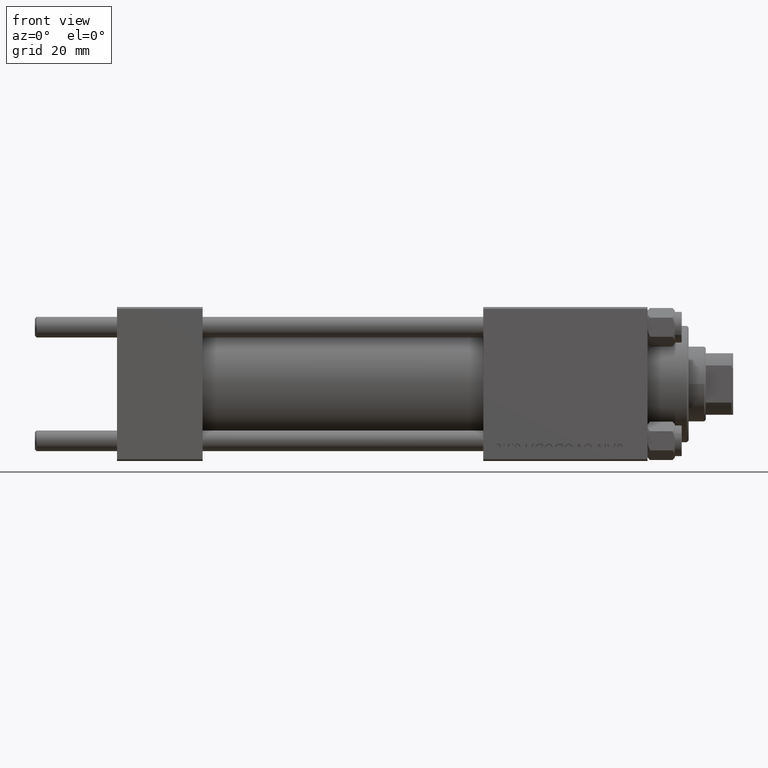
[diagram: clean part render]
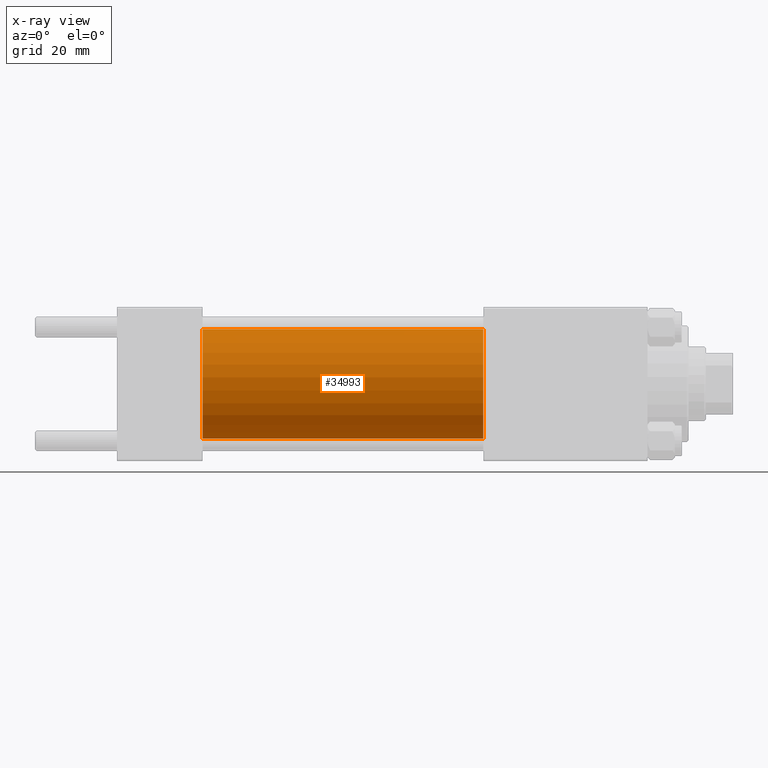
[diagram: x-ray — body ghosted, one internal face saturated and labeled with its STEP entity id]
A machine part, front view, then the same camera in x-ray: the body is ghosted and one INTERNAL B-rep face — a face not visible from any outside direction — is saturated and labeled: STEP entity #34993.
In plain terms, the highlighted cylindrical surface (partial cylindrical patch) has radius 16 mm, axis along (-1, -0, -0).
Its self-contained STEP definition (entity closure, byte-faithful):
#205 = LINE ( 'NONE', #456, #21306 ) ;
#456 = CARTESIAN_POINT ( 'NONE',  ( 107.0000000000000142, 1.959434878635765131E-15, -16.00000000000000000 ) ) ;
#1264 = AXIS2_PLACEMENT_3D ( 'NONE', #46919, #39359, #4821 ) ;
#2977 = EDGE_LOOP ( 'NONE', ( #3923, #17616, #43497, #26552 ) ) ;
#3076 = CARTESIAN_POINT ( 'NONE',  ( 107.0000000000000142, 0.000000000000000000, 16.00000000000000000 ) ) ;
#3923 = ORIENTED_EDGE ( 'NONE', *, *, #31374, .T. ) ;
#4821 = DIRECTION ( 'NONE',  ( 0.000000000000000000, 0.000000000000000000, 1.000000000000000000 ) ) ;
#5565 = EDGE_CURVE ( 'NONE', #31335, #28528, #21977, .T. ) ;
#9925 = DIRECTION ( 'NONE',  ( 0.000000000000000000, 0.000000000000000000, -1.000000000000000000 ) ) ;
#12401 = EDGE_CURVE ( 'NONE', #29750, #28528, #205, .T. ) ;
#13719 = DIRECTION ( 'NONE',  ( 1.000000000000000000, 0.000000000000000000, 0.000000000000000000 ) ) ;
#14648 = DIRECTION ( 'NONE',  ( 0.000000000000000000, 0.000000000000000000, -1.000000000000000000 ) ) ;
#15863 = DIRECTION ( 'NONE',  ( -1.000000000000000000, -0.000000000000000000, -0.000000000000000000 ) ) ;
#17515 = CARTESIAN_POINT ( 'NONE',  ( 25.00000000000000000, 0.000000000000000000, 16.00000000000000000 ) ) ;
#17616 = ORIENTED_EDGE ( 'NONE', *, *, #12401, .T. ) ;
#19090 = DIRECTION ( 'NONE',  ( -1.000000000000000000, -0.000000000000000000, -0.000000000000000000 ) ) ;
#19958 = FACE_OUTER_BOUND ( 'NONE', #2977, .T. ) ;
#20087 = LINE ( 'NONE', #38489, #43060 ) ;
#21306 = VECTOR ( 'NONE', #15863, 1000.000000000000000 ) ;
#21977 = CIRCLE ( 'NONE', #26014, 16.00000000000000000 ) ;
#22427 = CARTESIAN_POINT ( 'NONE',  ( 107.0000000000000142, 1.959434878635765131E-15, -16.00000000000000000 ) ) ;
#26014 = AXIS2_PLACEMENT_3D ( 'NONE', #42362, #41359, #14648 ) ;
#26552 = ORIENTED_EDGE ( 'NONE', *, *, #32873, .F. ) ;
#28528 = VERTEX_POINT ( 'NONE', #41248 ) ;
#29750 = VERTEX_POINT ( 'NONE', #22427 ) ;
#31335 = VERTEX_POINT ( 'NONE', #17515 ) ;
#31374 = EDGE_CURVE ( 'NONE', #37040, #29750, #32521, .T. ) ;
#32521 = CIRCLE ( 'NONE', #35751, 16.00000000000000000 ) ;
#32620 = CARTESIAN_POINT ( 'NONE',  ( 107.0000000000000142, 0.000000000000000000, 0.000000000000000000 ) ) ;
#32873 = EDGE_CURVE ( 'NONE', #37040, #31335, #20087, .T. ) ;
#34993 = ADVANCED_FACE ( 'NONE', ( #19958 ), #35332, .F. ) ;
#35332 = CYLINDRICAL_SURFACE ( 'NONE', #1264, 16.00000000000000000 ) ;
#35751 = AXIS2_PLACEMENT_3D ( 'NONE', #32620, #13719, #9925 ) ;
#37040 = VERTEX_POINT ( 'NONE', #3076 ) ;
#38489 = CARTESIAN_POINT ( 'NONE',  ( 107.0000000000000142, 0.000000000000000000, 16.00000000000000000 ) ) ;
#39359 = DIRECTION ( 'NONE',  ( -1.000000000000000000, -0.000000000000000000, -0.000000000000000000 ) ) ;
#41248 = CARTESIAN_POINT ( 'NONE',  ( 25.00000000000000000, 1.959434878635765131E-15, -16.00000000000000000 ) ) ;
#41359 = DIRECTION ( 'NONE',  ( 1.000000000000000000, 0.000000000000000000, 0.000000000000000000 ) ) ;
#42362 = CARTESIAN_POINT ( 'NONE',  ( 25.00000000000000000, 0.000000000000000000, 0.000000000000000000 ) ) ;
#43060 = VECTOR ( 'NONE', #19090, 1000.000000000000000 ) ;
#43497 = ORIENTED_EDGE ( 'NONE', *, *, #5565, .F. ) ;
#46919 = CARTESIAN_POINT ( 'NONE',  ( 107.0000000000000142, 0.000000000000000000, 0.000000000000000000 ) ) ;